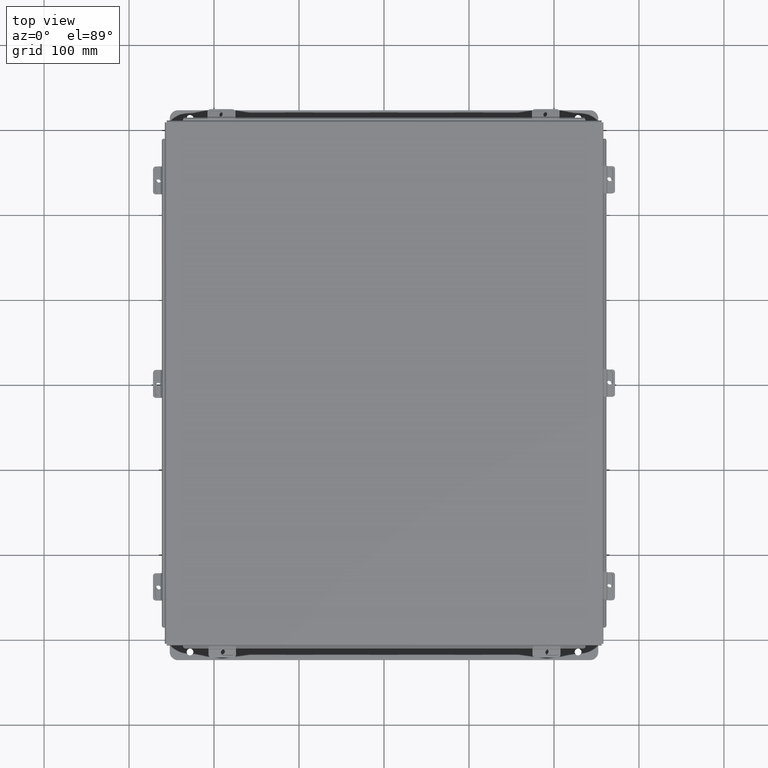
[diagram: clean part render]
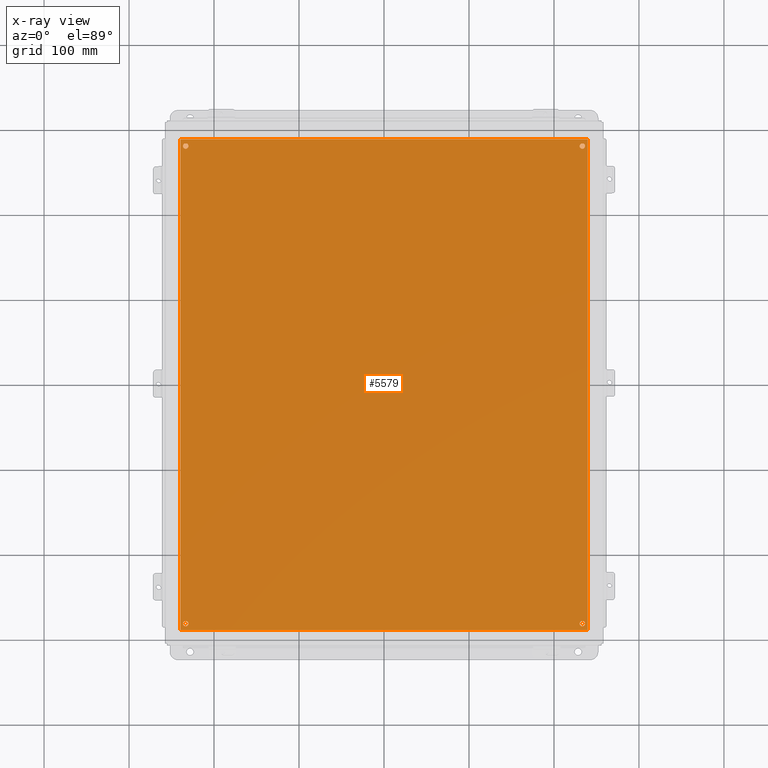
[diagram: x-ray — body ghosted, one internal face saturated and labeled with its STEP entity id]
A machine part, top view, then the same camera in x-ray: the body is ghosted and one INTERNAL B-rep face — a face not visible from any outside direction — is saturated and labeled: STEP entity #5579.
In plain terms, the highlighted planar face has unit normal (0, 0, -1).
Its self-contained STEP definition (entity closure, byte-faithful):
#100 = CARTESIAN_POINT ( 'NONE',  ( 18.50000000000000400, 0.3120000000000047700, -0.07470000000000003000 ) ) ;
#173 = DIRECTION ( 'NONE',  ( -0.0000000000000000000, -0.0000000000000000000, 1.000000000000000000 ) ) ;
#466 = CARTESIAN_POINT ( 'NONE',  ( 0.1249999999999997900, 22.43799999999999900, -0.07470000000000003000 ) ) ;
#780 = VERTEX_POINT ( 'NONE', #7574 ) ;
#858 = CARTESIAN_POINT ( 'NONE',  ( 0.2499999999999998100, 22.43799999999999900, -0.07470000000000003000 ) ) ;
#942 = CARTESIAN_POINT ( 'NONE',  ( 0.0000000000000000000, 0.0000000000000000000, -0.07470000000000003000 ) ) ;
#1013 = ORIENTED_EDGE ( 'NONE', *, *, #9199, .T. ) ;
#1166 = CARTESIAN_POINT ( 'NONE',  ( 18.62499999999999600, 22.43800000000000200, -0.07470000000000003000 ) ) ;
#1300 = EDGE_CURVE ( 'NONE', #4449, #1621, #1864, .T. ) ;
#1328 = AXIS2_PLACEMENT_3D ( 'NONE', #6406, #1779, #7208 ) ;
#1515 = DIRECTION ( 'NONE',  ( -0.0000000000000000000, -0.0000000000000000000, 1.000000000000000000 ) ) ;
#1520 = EDGE_CURVE ( 'NONE', #7723, #2460, #6059, .T. ) ;
#1600 = LINE ( 'NONE', #6653, #1823 ) ;
#1621 = VERTEX_POINT ( 'NONE', #4045 ) ;
#1635 = VERTEX_POINT ( 'NONE', #4059 ) ;
#1779 = DIRECTION ( 'NONE',  ( -0.0000000000000000000, -0.0000000000000000000, 1.000000000000000000 ) ) ;
#1823 = VECTOR ( 'NONE', #7426, 39.37007874015748100 ) ;
#1864 = LINE ( 'NONE', #8484, #6963 ) ;
#1904 = DIRECTION ( 'NONE',  ( -1.000000000000000000, 0.0000000000000000000, 0.0000000000000000000 ) ) ;
#1994 = FACE_BOUND ( 'NONE', #9658, .T. ) ;
#2034 = DIRECTION ( 'NONE',  ( -1.000000000000000000, 0.0000000000000000000, -0.0000000000000000000 ) ) ;
#2207 = FACE_OUTER_BOUND ( 'NONE', #6924, .T. ) ;
#2325 = EDGE_LOOP ( 'NONE', ( #3730, #1013 ) ) ;
#2458 = AXIS2_PLACEMENT_3D ( 'NONE', #8242, #3585, #9037 ) ;
#2460 = VERTEX_POINT ( 'NONE', #4681 ) ;
#2818 = VECTOR ( 'NONE', #3545, 39.37007874015748100 ) ;
#2950 = AXIS2_PLACEMENT_3D ( 'NONE', #6110, #8914, #5341 ) ;
#2952 = ORIENTED_EDGE ( 'NONE', *, *, #3973, .T. ) ;
#3022 = DIRECTION ( 'NONE',  ( -1.000000000000000000, 0.0000000000000000000, 0.0000000000000000000 ) ) ;
#3065 = VERTEX_POINT ( 'NONE', #942 ) ;
#3269 = ORIENTED_EDGE ( 'NONE', *, *, #7000, .T. ) ;
#3403 = EDGE_CURVE ( 'NONE', #3910, #8681, #8768, .T. ) ;
#3470 = CARTESIAN_POINT ( 'NONE',  ( 0.0000000000000000000, 22.75000000000000000, -0.07470000000000003000 ) ) ;
#3545 = DIRECTION ( 'NONE',  ( -1.000000000000000000, -0.0000000000000000000, -0.0000000000000000000 ) ) ;
#3560 = LINE ( 'NONE', #3981, #2818 ) ;
#3585 = DIRECTION ( 'NONE',  ( -0.0000000000000000000, -0.0000000000000000000, 1.000000000000000000 ) ) ;
#3640 = CARTESIAN_POINT ( 'NONE',  ( 18.49999999999999600, 22.43800000000000200, -0.07470000000000003000 ) ) ;
#3730 = ORIENTED_EDGE ( 'NONE', *, *, #4335, .T. ) ;
#3910 = VERTEX_POINT ( 'NONE', #6954 ) ;
#3973 = EDGE_CURVE ( 'NONE', #2460, #7723, #4238, .T. ) ;
#3981 = CARTESIAN_POINT ( 'NONE',  ( 0.0000000000000000000, 22.75000000000000000, -0.07470000000000003000 ) ) ;
#4045 = CARTESIAN_POINT ( 'NONE',  ( 18.87500000000000000, 22.75000000000000000, -0.07470000000000003000 ) ) ;
#4059 = CARTESIAN_POINT ( 'NONE',  ( 0.3750000000000020000, 0.3120000000000025500, -0.07470000000000003000 ) ) ;
#4061 = DIRECTION ( 'NONE',  ( -0.0000000000000000000, -0.0000000000000000000, 1.000000000000000000 ) ) ;
#4238 = CIRCLE ( 'NONE', #6504, 0.1249999999999993500 ) ;
#4335 = EDGE_CURVE ( 'NONE', #1635, #780, #8605, .T. ) ;
#4348 = DIRECTION ( 'NONE',  ( -0.0000000000000000000, -1.000000000000000000, -0.0000000000000000000 ) ) ;
#4350 = EDGE_LOOP ( 'NONE', ( #7218, #3269 ) ) ;
#4446 = CARTESIAN_POINT ( 'NONE',  ( 18.87500000000000000, 0.0000000000000000000, -0.07470000000000003000 ) ) ;
#4449 = VERTEX_POINT ( 'NONE', #4446 ) ;
#4478 = PLANE ( 'NONE',  #4607 ) ;
#4607 = AXIS2_PLACEMENT_3D ( 'NONE', #9344, #9372, #2034 ) ;
#4633 = AXIS2_PLACEMENT_3D ( 'NONE', #858, #4061, #3022 ) ;
#4681 = CARTESIAN_POINT ( 'NONE',  ( 18.75000000000000000, 0.3120000000000047700, -0.07470000000000003000 ) ) ;
#4719 = CARTESIAN_POINT ( 'NONE',  ( 0.2499999999999998100, 22.43799999999999900, -0.07470000000000003000 ) ) ;
#4750 = CIRCLE ( 'NONE', #9960, 0.1250000000000000000 ) ;
#5166 = VERTEX_POINT ( 'NONE', #3640 ) ;
#5291 = VERTEX_POINT ( 'NONE', #3470 ) ;
#5324 = CARTESIAN_POINT ( 'NONE',  ( 18.62500000000000000, 0.3120000000000047700, -0.07470000000000003000 ) ) ;
#5341 = DIRECTION ( 'NONE',  ( -1.000000000000000000, 0.0000000000000000000, 0.0000000000000000000 ) ) ;
#5490 = DIRECTION ( 'NONE',  ( -1.000000000000000000, 0.0000000000000000000, 0.0000000000000000000 ) ) ;
#5518 = ORIENTED_EDGE ( 'NONE', *, *, #9537, .T. ) ;
#5533 = DIRECTION ( 'NONE',  ( -1.000000000000000000, 0.0000000000000000000, 0.0000000000000000000 ) ) ;
#5579 = ADVANCED_FACE ( 'NONE', ( #8925, #1994, #7299, #8156, #2207 ), #4478, .T. ) ;
#5877 = EDGE_CURVE ( 'NONE', #1621, #5291, #3560, .T. ) ;
#6059 = CIRCLE ( 'NONE', #9882, 0.1249999999999993500 ) ;
#6062 = VERTEX_POINT ( 'NONE', #9396 ) ;
#6110 = CARTESIAN_POINT ( 'NONE',  ( 0.2500000000000020000, 0.3120000000000025500, -0.07470000000000003000 ) ) ;
#6111 = LINE ( 'NONE', #8244, #7696 ) ;
#6309 = EDGE_CURVE ( 'NONE', #5166, #6062, #9872, .T. ) ;
#6406 = CARTESIAN_POINT ( 'NONE',  ( 18.62499999999999600, 22.43800000000000200, -0.07470000000000003000 ) ) ;
#6417 = CIRCLE ( 'NONE', #8559, 0.1249999999999993500 ) ;
#6427 = ORIENTED_EDGE ( 'NONE', *, *, #1300, .F. ) ;
#6504 = AXIS2_PLACEMENT_3D ( 'NONE', #7828, #1515, #5533 ) ;
#6543 = DIRECTION ( 'NONE',  ( -0.0000000000000000000, -0.0000000000000000000, 1.000000000000000000 ) ) ;
#6653 = CARTESIAN_POINT ( 'NONE',  ( 0.0000000000000000000, 0.0000000000000000000, -0.07470000000000003000 ) ) ;
#6924 = EDGE_LOOP ( 'NONE', ( #7613, #7948, #6427, #9362 ) ) ;
#6954 = CARTESIAN_POINT ( 'NONE',  ( 0.3749999999999998300, 22.43799999999999900, -0.07470000000000003000 ) ) ;
#6963 = VECTOR ( 'NONE', #9064, 39.37007874015748100 ) ;
#7000 = EDGE_CURVE ( 'NONE', #8681, #3910, #4750, .T. ) ;
#7208 = DIRECTION ( 'NONE',  ( -1.000000000000000000, 0.0000000000000000000, 0.0000000000000000000 ) ) ;
#7218 = ORIENTED_EDGE ( 'NONE', *, *, #3403, .T. ) ;
#7285 = CIRCLE ( 'NONE', #2458, 0.1250000000000000600 ) ;
#7299 = FACE_BOUND ( 'NONE', #9878, .T. ) ;
#7404 = EDGE_CURVE ( 'NONE', #5291, #3065, #6111, .T. ) ;
#7426 = DIRECTION ( 'NONE',  ( 1.000000000000000000, 0.0000000000000000000, 0.0000000000000000000 ) ) ;
#7574 = CARTESIAN_POINT ( 'NONE',  ( 0.1250000000000019200, 0.3120000000000025500, -0.07470000000000003000 ) ) ;
#7613 = ORIENTED_EDGE ( 'NONE', *, *, #7404, .F. ) ;
#7639 = DIRECTION ( 'NONE',  ( -0.0000000000000000000, -0.0000000000000000000, 1.000000000000000000 ) ) ;
#7696 = VECTOR ( 'NONE', #4348, 39.37007874015748100 ) ;
#7723 = VERTEX_POINT ( 'NONE', #100 ) ;
#7828 = CARTESIAN_POINT ( 'NONE',  ( 18.62500000000000000, 0.3120000000000047700, -0.07470000000000003000 ) ) ;
#7948 = ORIENTED_EDGE ( 'NONE', *, *, #5877, .F. ) ;
#8156 = FACE_BOUND ( 'NONE', #4350, .T. ) ;
#8242 = CARTESIAN_POINT ( 'NONE',  ( 0.2500000000000020000, 0.3120000000000025500, -0.07470000000000003000 ) ) ;
#8244 = CARTESIAN_POINT ( 'NONE',  ( 0.0000000000000000000, 0.0000000000000000000, -0.07470000000000003000 ) ) ;
#8484 = CARTESIAN_POINT ( 'NONE',  ( 18.87500000000000000, 0.0000000000000000000, -0.07470000000000003000 ) ) ;
#8559 = AXIS2_PLACEMENT_3D ( 'NONE', #1166, #6543, #1904 ) ;
#8605 = CIRCLE ( 'NONE', #2950, 0.1250000000000000600 ) ;
#8681 = VERTEX_POINT ( 'NONE', #466 ) ;
#8768 = CIRCLE ( 'NONE', #4633, 0.1250000000000000000 ) ;
#8833 = DIRECTION ( 'NONE',  ( -1.000000000000000000, 0.0000000000000000000, 0.0000000000000000000 ) ) ;
#8914 = DIRECTION ( 'NONE',  ( -0.0000000000000000000, -0.0000000000000000000, 1.000000000000000000 ) ) ;
#8925 = FACE_BOUND ( 'NONE', #2325, .T. ) ;
#9037 = DIRECTION ( 'NONE',  ( -1.000000000000000000, 0.0000000000000000000, 0.0000000000000000000 ) ) ;
#9064 = DIRECTION ( 'NONE',  ( 0.0000000000000000000, 1.000000000000000000, 0.0000000000000000000 ) ) ;
#9199 = EDGE_CURVE ( 'NONE', #780, #1635, #7285, .T. ) ;
#9344 = CARTESIAN_POINT ( 'NONE',  ( 0.0000000000000000000, 0.0000000000000000000, -0.07470000000000003000 ) ) ;
#9362 = ORIENTED_EDGE ( 'NONE', *, *, #9681, .F. ) ;
#9372 = DIRECTION ( 'NONE',  ( 0.0000000000000000000, 0.0000000000000000000, -1.000000000000000000 ) ) ;
#9396 = CARTESIAN_POINT ( 'NONE',  ( 18.74999999999999600, 22.43800000000000200, -0.07470000000000003000 ) ) ;
#9537 = EDGE_CURVE ( 'NONE', #6062, #5166, #6417, .T. ) ;
#9607 = ORIENTED_EDGE ( 'NONE', *, *, #1520, .T. ) ;
#9658 = EDGE_LOOP ( 'NONE', ( #2952, #9607 ) ) ;
#9681 = EDGE_CURVE ( 'NONE', #3065, #4449, #1600, .T. ) ;
#9719 = ORIENTED_EDGE ( 'NONE', *, *, #6309, .T. ) ;
#9872 = CIRCLE ( 'NONE', #1328, 0.1249999999999993500 ) ;
#9878 = EDGE_LOOP ( 'NONE', ( #5518, #9719 ) ) ;
#9882 = AXIS2_PLACEMENT_3D ( 'NONE', #5324, #7639, #8833 ) ;
#9960 = AXIS2_PLACEMENT_3D ( 'NONE', #4719, #173, #5490 ) ;